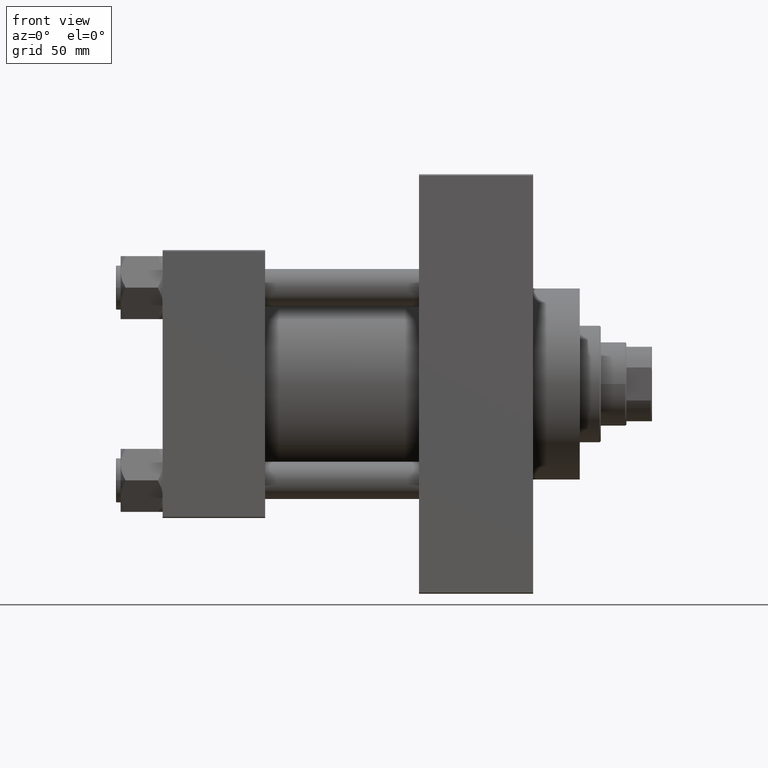
[diagram: clean part render]
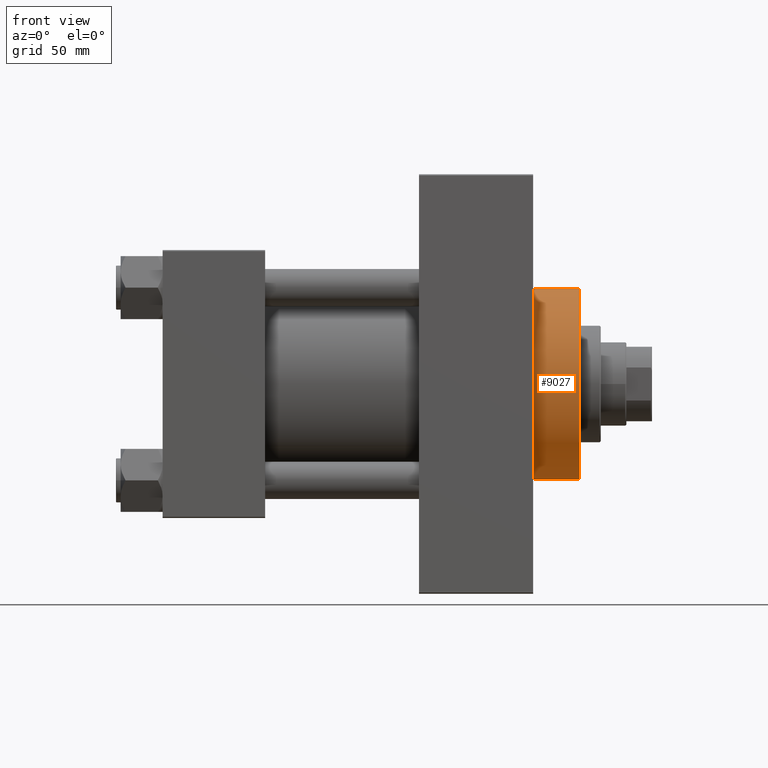
[diagram: same view with one face highlighted and labeled with its STEP entity id]
A machine part, front view. The second image highlights one B-rep face of the part: STEP entity #9027.
In plain terms, the highlighted cylindrical surface (partial cylindrical patch) has radius 41 mm, axis along (-1, -0, -0).
Its self-contained STEP definition (entity closure, byte-faithful):
#354 = AXIS2_PLACEMENT_3D ( 'NONE', #16901, #27723, #38835 ) ;
#2192 = FACE_OUTER_BOUND ( 'NONE', #30643, .T. ) ;
#2908 = CARTESIAN_POINT ( 'NONE',  ( 179.0000000000000000, 0.000000000000000000, 0.000000000000000000 ) ) ;
#5510 = CARTESIAN_POINT ( 'NONE',  ( 179.0000000000000000, 5.021051876504148963E-15, -41.00000000000000000 ) ) ;
#5840 = VERTEX_POINT ( 'NONE', #7121 ) ;
#6923 = DIRECTION ( 'NONE',  ( 0.000000000000000000, 0.000000000000000000, -1.000000000000000000 ) ) ;
#7121 = CARTESIAN_POINT ( 'NONE',  ( 159.0000000000000000, 5.021051876504148963E-15, -41.00000000000000000 ) ) ;
#7403 = CARTESIAN_POINT ( 'NONE',  ( 159.0000000000000000, 0.000000000000000000, 0.000000000000000000 ) ) ;
#8080 = ORIENTED_EDGE ( 'NONE', *, *, #43627, .F. ) ;
#9027 = ADVANCED_FACE ( 'NONE', ( #2192 ), #12343, .T. ) ;
#10197 = VERTEX_POINT ( 'NONE', #5510 ) ;
#11446 = CIRCLE ( 'NONE', #45283, 41.00000000000000000 ) ;
#12343 = CYLINDRICAL_SURFACE ( 'NONE', #354, 41.00000000000000000 ) ;
#13649 = CARTESIAN_POINT ( 'NONE',  ( 179.0000000000000000, 0.000000000000000000, 41.00000000000000000 ) ) ;
#14543 = CARTESIAN_POINT ( 'NONE',  ( 179.0000000000000000, 5.021051876504148963E-15, -41.00000000000000000 ) ) ;
#16901 = CARTESIAN_POINT ( 'NONE',  ( 179.0000000000000000, 0.000000000000000000, 0.000000000000000000 ) ) ;
#19481 = ORIENTED_EDGE ( 'NONE', *, *, #27068, .T. ) ;
#20959 = VECTOR ( 'NONE', #36479, 1000.000000000000000 ) ;
#22515 = AXIS2_PLACEMENT_3D ( 'NONE', #2908, #25068, #47018 ) ;
#24736 = DIRECTION ( 'NONE',  ( -1.000000000000000000, -0.000000000000000000, -0.000000000000000000 ) ) ;
#25068 = DIRECTION ( 'NONE',  ( 1.000000000000000000, 0.000000000000000000, 0.000000000000000000 ) ) ;
#27068 = EDGE_CURVE ( 'NONE', #27396, #5840, #11446, .T. ) ;
#27396 = VERTEX_POINT ( 'NONE', #43267 ) ;
#27723 = DIRECTION ( 'NONE',  ( -1.000000000000000000, -0.000000000000000000, -0.000000000000000000 ) ) ;
#29316 = DIRECTION ( 'NONE',  ( 1.000000000000000000, 0.000000000000000000, 0.000000000000000000 ) ) ;
#30643 = EDGE_LOOP ( 'NONE', ( #33331, #8080, #32095, #19481 ) ) ;
#32095 = ORIENTED_EDGE ( 'NONE', *, *, #47514, .T. ) ;
#33087 = LINE ( 'NONE', #14543, #20959 ) ;
#33331 = ORIENTED_EDGE ( 'NONE', *, *, #39521, .F. ) ;
#33551 = CARTESIAN_POINT ( 'NONE',  ( 179.0000000000000000, 0.000000000000000000, 41.00000000000000000 ) ) ;
#35562 = LINE ( 'NONE', #13649, #38798 ) ;
#36479 = DIRECTION ( 'NONE',  ( -1.000000000000000000, -0.000000000000000000, -0.000000000000000000 ) ) ;
#38764 = VERTEX_POINT ( 'NONE', #33551 ) ;
#38798 = VECTOR ( 'NONE', #24736, 1000.000000000000000 ) ;
#38835 = DIRECTION ( 'NONE',  ( 0.000000000000000000, 0.000000000000000000, 1.000000000000000000 ) ) ;
#39521 = EDGE_CURVE ( 'NONE', #10197, #5840, #33087, .T. ) ;
#43267 = CARTESIAN_POINT ( 'NONE',  ( 159.0000000000000000, 0.000000000000000000, 41.00000000000000000 ) ) ;
#43277 = CIRCLE ( 'NONE', #22515, 41.00000000000000000 ) ;
#43627 = EDGE_CURVE ( 'NONE', #38764, #10197, #43277, .T. ) ;
#45283 = AXIS2_PLACEMENT_3D ( 'NONE', #7403, #29316, #6923 ) ;
#47018 = DIRECTION ( 'NONE',  ( 0.000000000000000000, 0.000000000000000000, -1.000000000000000000 ) ) ;
#47514 = EDGE_CURVE ( 'NONE', #38764, #27396, #35562, .T. ) ;